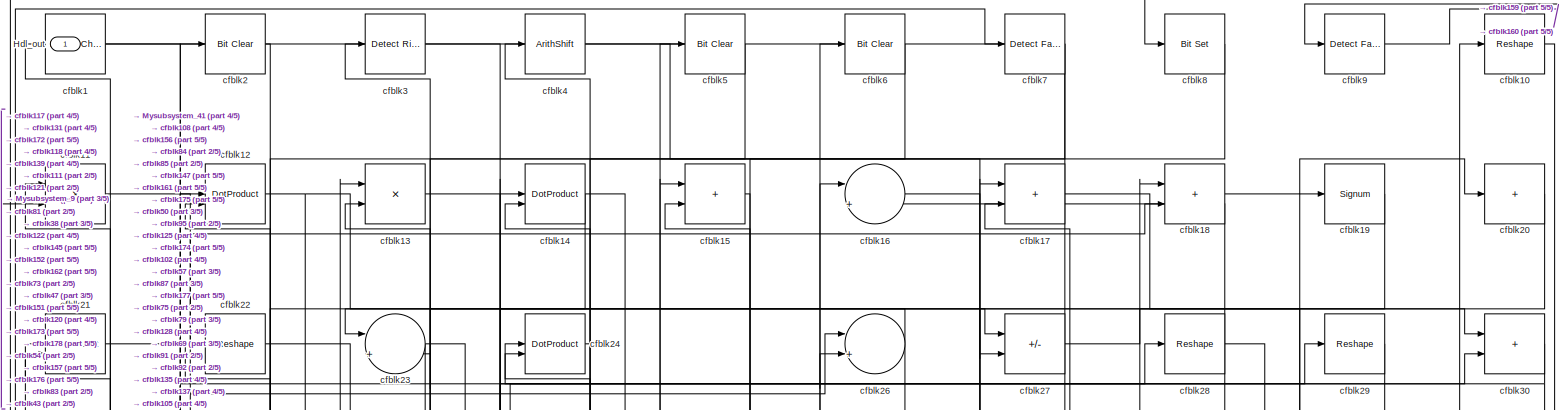
[diagram: root canvas - part 1/5, full width, top band]
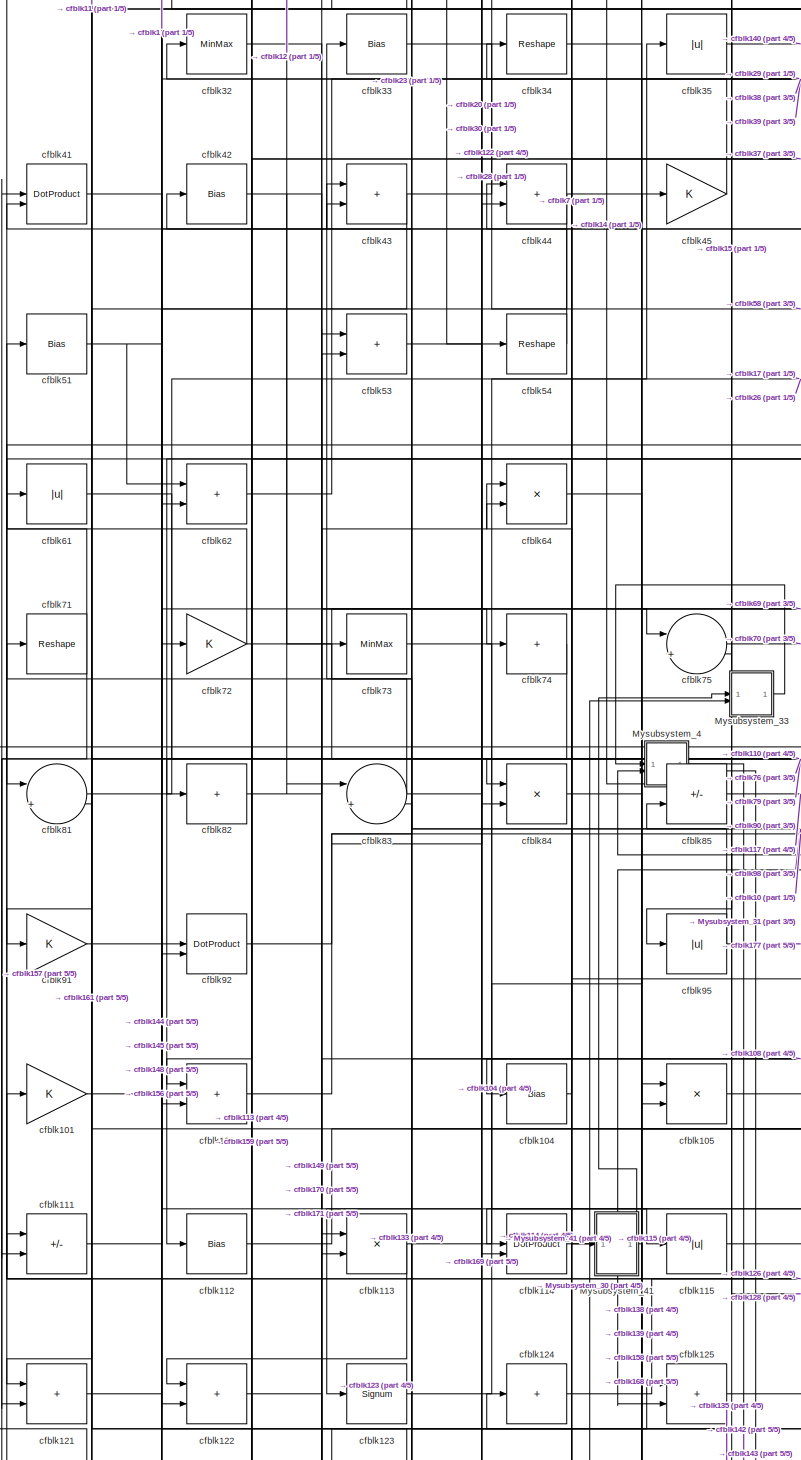
[diagram: root canvas - part 2/5, middle left region]
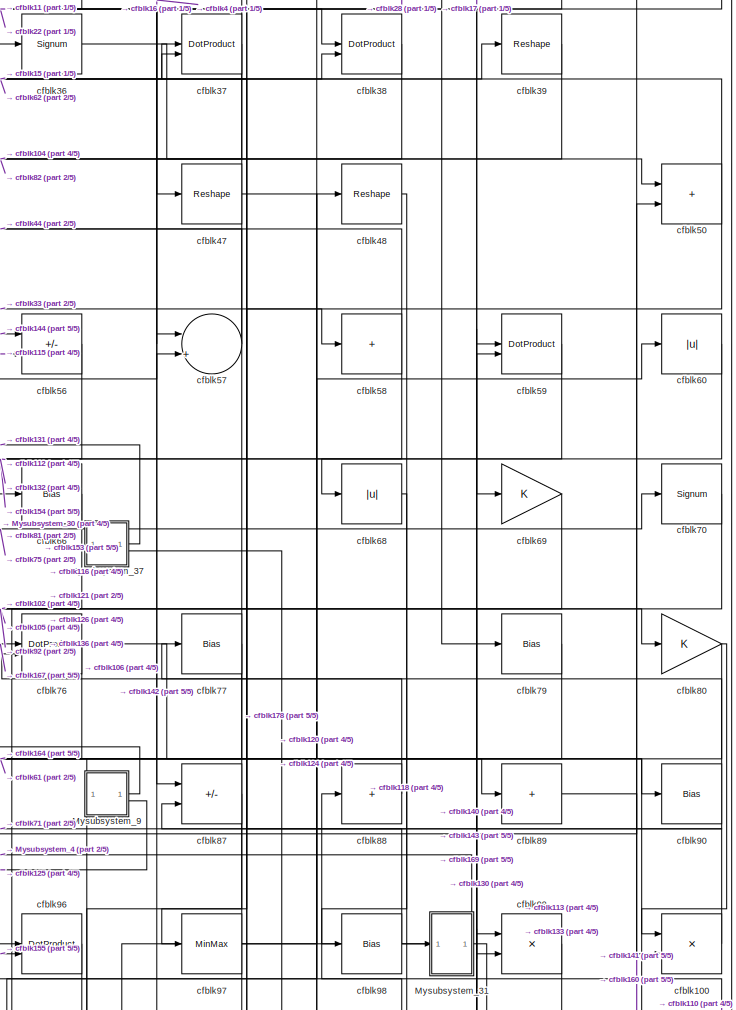
[diagram: root canvas - part 3/5, middle right region]
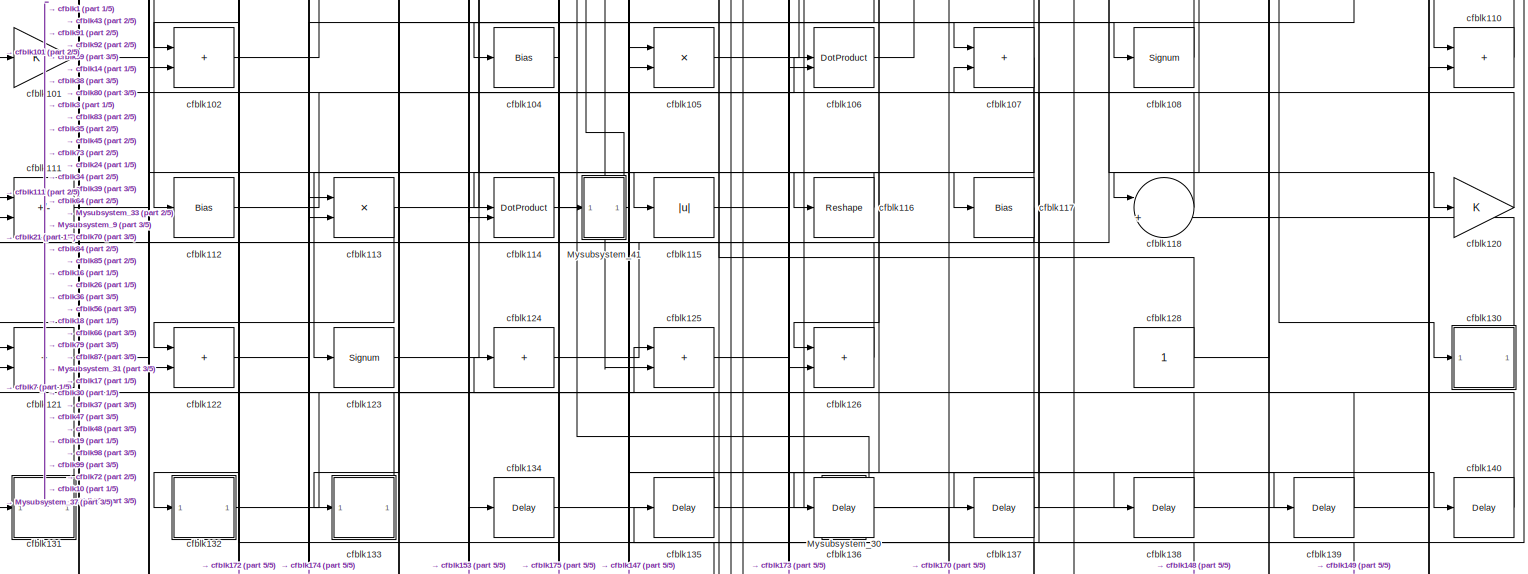
[diagram: root canvas - part 4/5, full width, bottom band]
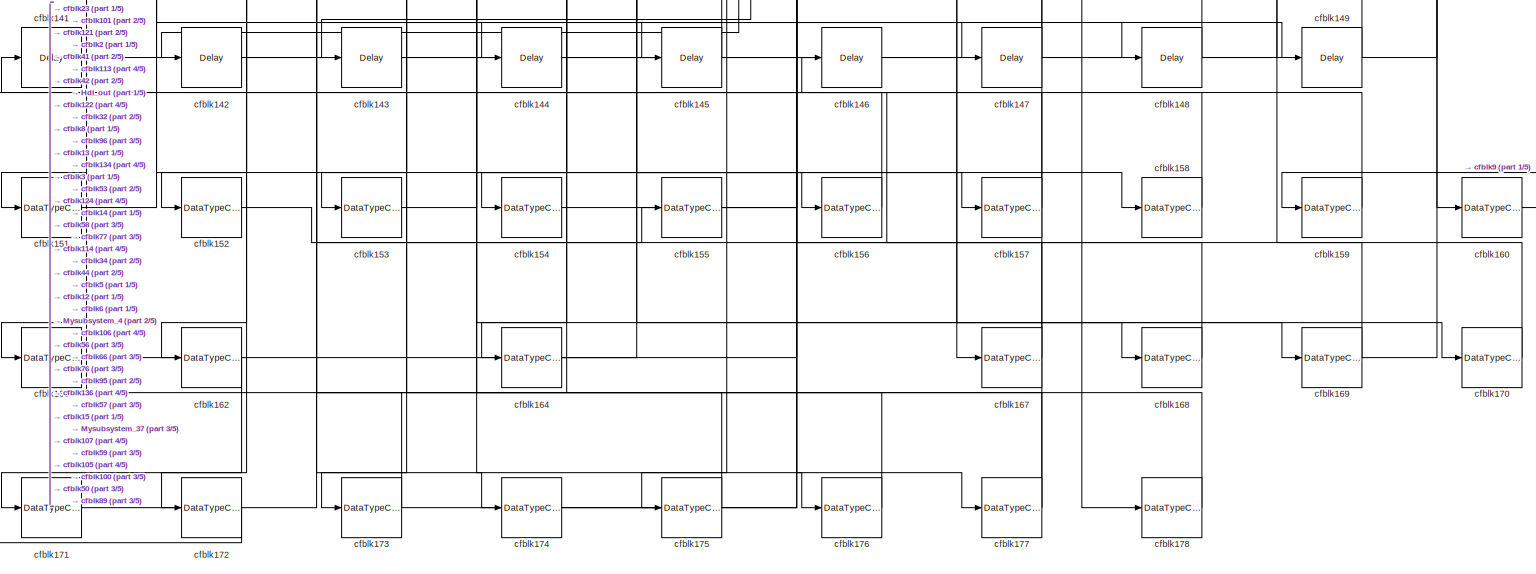
[diagram: root canvas - part 5/5, full width, bottom band]
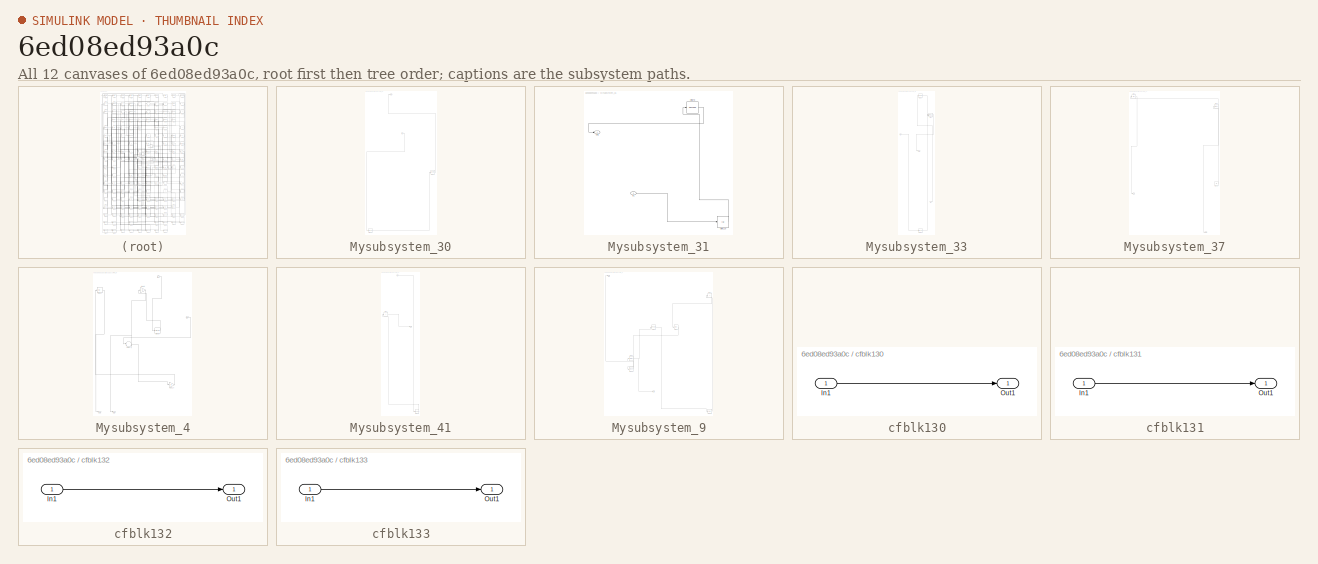
[diagram: thumbnail index - all 12 canvases of the model, root first then tree order]
MODEL slx_6ed08ed93a0c
KIND model
CONFIG AbsTol = auto
CONFIG EnableMultiTasking = off
CONFIG FixedStep = auto
CONFIG MaxStep = auto
CONFIG MinStep = auto
CONFIG RelTol = 1e-3
CONFIG SampleTimeConstraint = Unconstrained
CONFIG SolverName = VariableStepAuto
CONFIG StartTime = 0.0
CONFIG StopTime = 10.0
BLOCK [Outport] Hdl_out
  OutDataTypeStr = uint8
BLOCK [SubSystem] Mysubsystem_30
  RTWFcnName = Mysubsystem_30
  RTWFcnNameOpts = User specified
  RTWFileNameOpts = Use function name
  RTWSystemCode = Reusable function
  TreatAsAtomicUnit = on
BLOCK [Inport] Mysubsystem_30/In1
BLOCK [Outport] Mysubsystem_30/Out1
BLOCK [Signum] Mysubsystem_30/cfblk109
BLOCK [DataTypeConversion] Mysubsystem_30/cfblk163
  OutDataTypeStr = uint8
  RndMeth = Floor
  SaturateOnIntegerOverflow = off
BLOCK [SubSystem] Mysubsystem_31
  RTWFcnName = Mysubsystem_31
  RTWFcnNameOpts = User specified
  RTWFileNameOpts = Use function name
  RTWSystemCode = Reusable function
  TreatAsAtomicUnit = on
BLOCK [Inport] Mysubsystem_31/In1
BLOCK [Outport] Mysubsystem_31/Out1
BLOCK [Abs] Mysubsystem_31/cfblk119
  SaturateOnIntegerOverflow = off
BLOCK [Reshape] Mysubsystem_31/cfblk78
BLOCK [SubSystem] Mysubsystem_33
  RTWFcnName = Mysubsystem_33
  RTWFcnNameOpts = User specified
  RTWFileNameOpts = Use function name
  RTWSystemCode = Reusable function
  TreatAsAtomicUnit = on
BLOCK [Inport] Mysubsystem_33/In1
BLOCK [Inport] Mysubsystem_33/In2
  Port = 2
BLOCK [Outport] Mysubsystem_33/Out1
BLOCK [DataTypeConversion] Mysubsystem_33/cfblk165
  OutDataTypeStr = uint8
  RndMeth = Floor
  SaturateOnIntegerOverflow = off
BLOCK [Reshape] Mysubsystem_33/cfblk25
BLOCK [DotProduct] Mysubsystem_33/cfblk46
  OutDataTypeStr = Inherit: Inherit via internal rule
BLOCK [SubSystem] Mysubsystem_37
  RTWFcnName = Mysubsystem_37
  RTWFcnNameOpts = User specified
  RTWFileNameOpts = Use function name
  RTWSystemCode = Reusable function
  TreatAsAtomicUnit = on
BLOCK [Outport] Mysubsystem_37/Out1
BLOCK [Outport] Mysubsystem_37/Out2
  Port = 2
BLOCK [Ground] Mysubsystem_37/cfblk129
BLOCK [Bias] Mysubsystem_37/cfblk31
  Bias = 0.0
  SaturateOnIntegerOverflow = off
BLOCK [MinMax] Mysubsystem_37/cfblk49
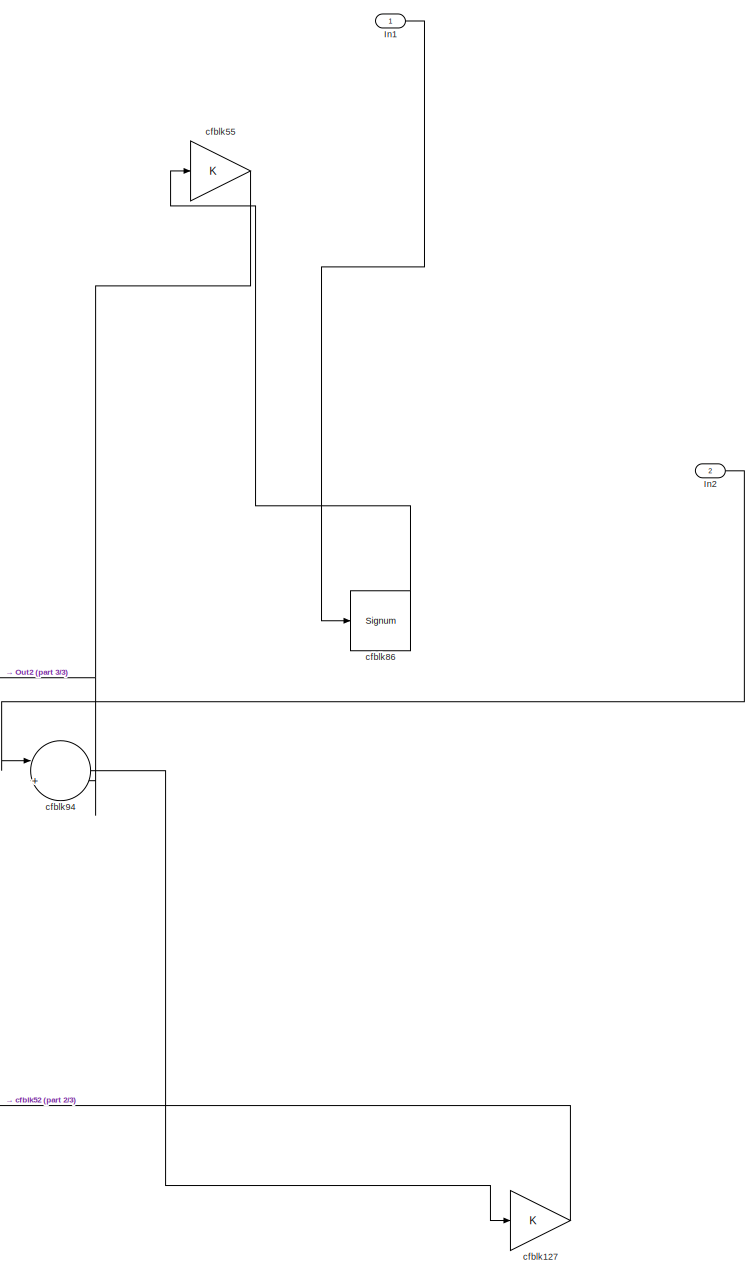
[diagram: Mysubsystem_4 - part 1/3, center side, full height]
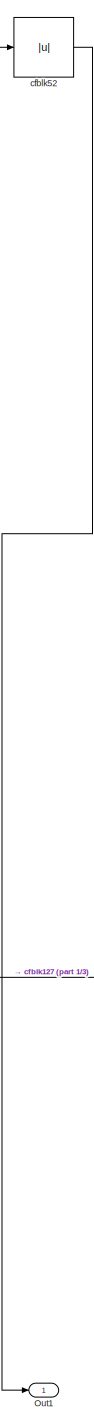
[diagram: Mysubsystem_4 - part 2/3, left side, full height]
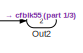
[diagram: Mysubsystem_4 - part 3/3, bottom left region]
BLOCK [SubSystem] Mysubsystem_4
  RTWFcnName = Mysubsystem_4
  RTWFcnNameOpts = User specified
  RTWFileNameOpts = Use function name
  RTWSystemCode = Reusable function
  TreatAsAtomicUnit = on
BLOCK [Inport] Mysubsystem_4/In1
BLOCK [Inport] Mysubsystem_4/In2
  Port = 2
BLOCK [Outport] Mysubsystem_4/Out1
BLOCK [Outport] Mysubsystem_4/Out2
  Port = 2
BLOCK [Gain] Mysubsystem_4/cfblk127
BLOCK [Abs] Mysubsystem_4/cfblk52
  SaturateOnIntegerOverflow = off
BLOCK [Gain] Mysubsystem_4/cfblk55
BLOCK [Signum] Mysubsystem_4/cfblk86
BLOCK [Sum] Mysubsystem_4/cfblk94
  Inputs = |++
BLOCK [SubSystem] Mysubsystem_41
  RTWFcnName = Mysubsystem_41
  RTWFcnNameOpts = User specified
  RTWFileNameOpts = Use function name
  RTWSystemCode = Reusable function
  TreatAsAtomicUnit = on
BLOCK [Inport] Mysubsystem_41/In1
BLOCK [Outport] Mysubsystem_41/Out1
BLOCK [DataTypeConversion] Mysubsystem_41/cfblk166
  OutDataTypeStr = uint8
  RndMeth = Floor
  SaturateOnIntegerOverflow = off
BLOCK [Sum] Mysubsystem_41/cfblk63
  IconShape = rectangular
  Inputs = +
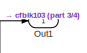
[diagram: Mysubsystem_9 - part 1/4, top left region]
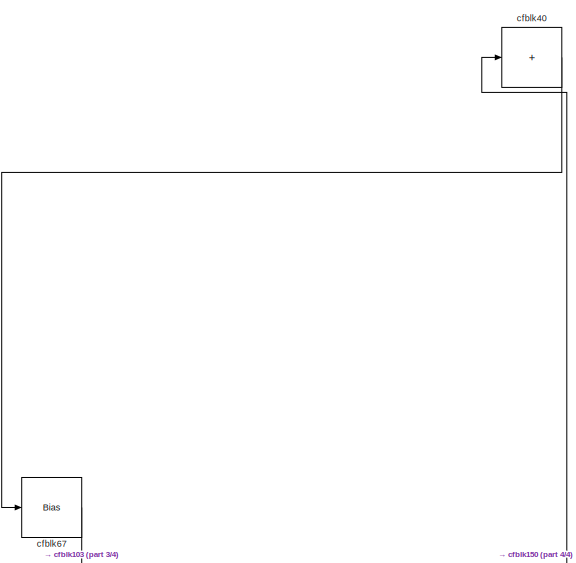
[diagram: Mysubsystem_9 - part 2/4, top right region]
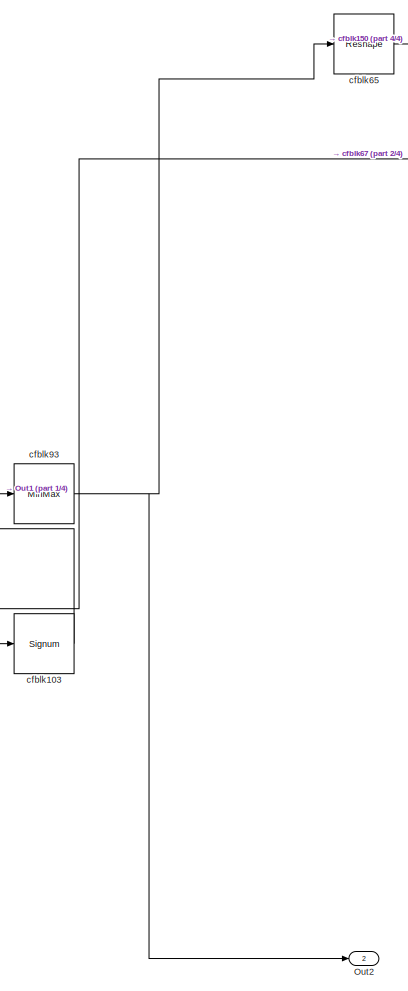
[diagram: Mysubsystem_9 - part 3/4, central region]
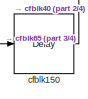
[diagram: Mysubsystem_9 - part 4/4, bottom right region]
BLOCK [SubSystem] Mysubsystem_9
  RTWFcnName = Mysubsystem_9
  RTWFcnNameOpts = User specified
  RTWFileNameOpts = Use function name
  RTWSystemCode = Reusable function
  TreatAsAtomicUnit = on
BLOCK [Outport] Mysubsystem_9/Out1
BLOCK [Outport] Mysubsystem_9/Out2
  Port = 2
BLOCK [Signum] Mysubsystem_9/cfblk103
BLOCK [Delay] Mysubsystem_9/cfblk150
  InputPortMap = u0
  SampleTime = 1
BLOCK [Sum] Mysubsystem_9/cfblk40
  IconShape = rectangular
  Inputs = +
BLOCK [Reshape] Mysubsystem_9/cfblk65
BLOCK [Bias] Mysubsystem_9/cfblk67
  Bias = 0.0
  SaturateOnIntegerOverflow = off
BLOCK [MinMax] Mysubsystem_9/cfblk93
BLOCK [Reference] cfblk1  REF=simulink/Logic and Bit
Operations/Detect
Change
  LibrarySourceBlock = hdlsllib/Logic and Bit\nOperations/Detect\nChange
  SourceBlock = simulink/Logic and Bit\nOperations/Detect\nChange
  SourceType = Detect Change
BLOCK [Reshape] cfblk10
BLOCK [Product] cfblk100
  Inputs = */
  OutDataTypeStr = uint8
  RndMeth = Zero
  SaturateOnIntegerOverflow = on
BLOCK [Gain] cfblk101
  OutDataTypeStr = uint8
BLOCK [Sum] cfblk102
  IconShape = rectangular
  OutDataTypeStr = uint8
BLOCK [Bias] cfblk104
  Bias = 0.0
  SaturateOnIntegerOverflow = off
BLOCK [Product] cfblk105
  Inputs = */
  OutDataTypeStr = uint8
  RndMeth = Zero
  SaturateOnIntegerOverflow = on
BLOCK [DotProduct] cfblk106
  OutDataTypeStr = uint8
BLOCK [Sum] cfblk107
  IconShape = rectangular
  OutDataTypeStr = uint8
BLOCK [Signum] cfblk108
BLOCK [Product] cfblk11
  Inputs = */
  OutDataTypeStr = uint8
  RndMeth = Zero
  SaturateOnIntegerOverflow = on
BLOCK [Sum] cfblk110
  IconShape = rectangular
  OutDataTypeStr = uint8
BLOCK [Sum] cfblk111
  IconShape = rectangular
  Inputs = +-
  OutDataTypeStr = uint8
BLOCK [Bias] cfblk112
  Bias = 0.0
  SaturateOnIntegerOverflow = off
BLOCK [Product] cfblk113
  Inputs = */
  OutDataTypeStr = uint8
  RndMeth = Zero
  SaturateOnIntegerOverflow = on
BLOCK [DotProduct] cfblk114
  OutDataTypeStr = uint8
BLOCK [Abs] cfblk115
  OutDataTypeStr = uint8
  SaturateOnIntegerOverflow = off
BLOCK [Reshape] cfblk116
BLOCK [Bias] cfblk117
  Bias = 0.0
  SaturateOnIntegerOverflow = off
BLOCK [Sum] cfblk118
  Inputs = |++
  OutDataTypeStr = uint8
BLOCK [DotProduct] cfblk12
  OutDataTypeStr = uint8
BLOCK [Gain] cfblk120
  OutDataTypeStr = uint8
BLOCK [Sum] cfblk121
  IconShape = rectangular
  OutDataTypeStr = uint8
BLOCK [Sum] cfblk122
  IconShape = rectangular
  OutDataTypeStr = uint8
BLOCK [Signum] cfblk123
BLOCK [Sum] cfblk124
  IconShape = rectangular
  Inputs = +
  OutDataTypeStr = uint8
BLOCK [Sum] cfblk125
  IconShape = rectangular
  OutDataTypeStr = uint8
BLOCK [Sum] cfblk126
  IconShape = rectangular
  OutDataTypeStr = uint8
BLOCK [Constant] cfblk128
  OutDataTypeStr = uint8
  SampleTime = -1
BLOCK [Product] cfblk13
  Inputs = */
  OutDataTypeStr = uint8
  RndMeth = Zero
  SaturateOnIntegerOverflow = on
BLOCK [SubSystem] cfblk130
  LibrarySourceBlock = hdlsllib/Ports &\nSubsystems/Subsystem
BLOCK [Inport] cfblk130/In1
BLOCK [Outport] cfblk130/Out1
BLOCK [SubSystem] cfblk131
  LibrarySourceBlock = hdlsllib/Ports &\nSubsystems/Subsystem
BLOCK [Inport] cfblk131/In1
BLOCK [Outport] cfblk131/Out1
BLOCK [SubSystem] cfblk132
  LibrarySourceBlock = hdlsllib/Ports &\nSubsystems/Subsystem
BLOCK [Inport] cfblk132/In1
BLOCK [Outport] cfblk132/Out1
BLOCK [SubSystem] cfblk133
  LibrarySourceBlock = hdlsllib/Ports &\nSubsystems/Subsystem
BLOCK [Inport] cfblk133/In1
BLOCK [Outport] cfblk133/Out1
BLOCK [Delay] cfblk134
  InputPortMap = u0
  SampleTime = 1
BLOCK [Delay] cfblk135
  InputPortMap = u0
  SampleTime = 1
BLOCK [Delay] cfblk136
  InputPortMap = u0
  SampleTime = 1
BLOCK [Delay] cfblk137
  InputPortMap = u0
  SampleTime = 1
BLOCK [Delay] cfblk138
  InputPortMap = u0
  SampleTime = 1
BLOCK [Delay] cfblk139
  InputPortMap = u0
  SampleTime = 1
BLOCK [DotProduct] cfblk14
  OutDataTypeStr = uint8
BLOCK [Delay] cfblk140
  InputPortMap = u0
  SampleTime = 1
BLOCK [Delay] cfblk141
  InputPortMap = u0
  SampleTime = 1
BLOCK [Delay] cfblk142
  InputPortMap = u0
  SampleTime = 1
BLOCK [Delay] cfblk143
  InputPortMap = u0
  SampleTime = 1
BLOCK [Delay] cfblk144
  InputPortMap = u0
  SampleTime = 1
BLOCK [Delay] cfblk145
  InputPortMap = u0
  SampleTime = 1
BLOCK [Delay] cfblk146
  InputPortMap = u0
  SampleTime = 1
BLOCK [Delay] cfblk147
  InputPortMap = u0
  SampleTime = 1
BLOCK [Delay] cfblk148
  InputPortMap = u0
  SampleTime = 1
BLOCK [Delay] cfblk149
  InputPortMap = u0
  SampleTime = 1
BLOCK [Sum] cfblk15
  IconShape = rectangular
  OutDataTypeStr = uint8
BLOCK [DataTypeConversion] cfblk151
  OutDataTypeStr = uint8
  RndMeth = Floor
  SaturateOnIntegerOverflow = off
BLOCK [DataTypeConversion] cfblk152
  OutDataTypeStr = uint8
  RndMeth = Floor
  SaturateOnIntegerOverflow = off
BLOCK [DataTypeConversion] cfblk153
  OutDataTypeStr = uint8
  RndMeth = Floor
  SaturateOnIntegerOverflow = off
BLOCK [DataTypeConversion] cfblk154
  OutDataTypeStr = uint8
  RndMeth = Floor
  SaturateOnIntegerOverflow = off
BLOCK [DataTypeConversion] cfblk155
  OutDataTypeStr = uint8
  RndMeth = Floor
  SaturateOnIntegerOverflow = off
BLOCK [DataTypeConversion] cfblk156
  OutDataTypeStr = uint8
  RndMeth = Floor
  SaturateOnIntegerOverflow = off
BLOCK [DataTypeConversion] cfblk157
  OutDataTypeStr = uint8
  RndMeth = Floor
  SaturateOnIntegerOverflow = off
BLOCK [DataTypeConversion] cfblk158
  OutDataTypeStr = uint8
  RndMeth = Floor
  SaturateOnIntegerOverflow = off
BLOCK [DataTypeConversion] cfblk159
  OutDataTypeStr = uint8
  RndMeth = Floor
  SaturateOnIntegerOverflow = off
BLOCK [Sum] cfblk16
  Inputs = |++
  OutDataTypeStr = uint8
BLOCK [DataTypeConversion] cfblk160
  OutDataTypeStr = uint8
  RndMeth = Floor
  SaturateOnIntegerOverflow = off
BLOCK [DataTypeConversion] cfblk161
  OutDataTypeStr = uint8
  RndMeth = Floor
  SaturateOnIntegerOverflow = off
BLOCK [DataTypeConversion] cfblk162
  OutDataTypeStr = uint8
  RndMeth = Floor
  SaturateOnIntegerOverflow = off
BLOCK [DataTypeConversion] cfblk164
  OutDataTypeStr = uint8
  RndMeth = Floor
  SaturateOnIntegerOverflow = off
BLOCK [DataTypeConversion] cfblk167
  OutDataTypeStr = uint8
  RndMeth = Floor
  SaturateOnIntegerOverflow = off
BLOCK [DataTypeConversion] cfblk168
  OutDataTypeStr = uint8
  RndMeth = Floor
  SaturateOnIntegerOverflow = off
BLOCK [DataTypeConversion] cfblk169
  OutDataTypeStr = uint8
  RndMeth = Floor
  SaturateOnIntegerOverflow = off
BLOCK [Sum] cfblk17
  IconShape = rectangular
  OutDataTypeStr = uint8
BLOCK [DataTypeConversion] cfblk170
  OutDataTypeStr = uint8
  RndMeth = Floor
  SaturateOnIntegerOverflow = off
BLOCK [DataTypeConversion] cfblk171
  OutDataTypeStr = uint8
  RndMeth = Floor
  SaturateOnIntegerOverflow = off
BLOCK [DataTypeConversion] cfblk172
  OutDataTypeStr = uint8
  RndMeth = Floor
  SaturateOnIntegerOverflow = off
BLOCK [DataTypeConversion] cfblk173
  OutDataTypeStr = uint8
  RndMeth = Floor
  SaturateOnIntegerOverflow = off
BLOCK [DataTypeConversion] cfblk174
  OutDataTypeStr = uint8
  RndMeth = Floor
  SaturateOnIntegerOverflow = off
BLOCK [DataTypeConversion] cfblk175
  OutDataTypeStr = uint8
  RndMeth = Floor
  SaturateOnIntegerOverflow = off
BLOCK [DataTypeConversion] cfblk176
  OutDataTypeStr = uint8
  RndMeth = Floor
  SaturateOnIntegerOverflow = off
BLOCK [DataTypeConversion] cfblk177
  OutDataTypeStr = uint8
  RndMeth = Floor
  SaturateOnIntegerOverflow = off
BLOCK [DataTypeConversion] cfblk178
  OutDataTypeStr = uint8
  RndMeth = Floor
  SaturateOnIntegerOverflow = off
BLOCK [Sum] cfblk18
  IconShape = rectangular
  OutDataTypeStr = uint8
BLOCK [Signum] cfblk19
BLOCK [Reference] cfblk2  REF=simulink/Logic and Bit
Operations/Bit Clear
  LibrarySourceBlock = hdlsllib/Logic and Bit\nOperations/Bit Clear
  SourceBlock = simulink/Logic and Bit\nOperations/Bit Clear
  SourceType = Bit Clear
BLOCK [Sum] cfblk20
  IconShape = rectangular
  Inputs = +
  OutDataTypeStr = uint8
BLOCK [DotProduct] cfblk21
  OutDataTypeStr = uint8
BLOCK [Reshape] cfblk22
BLOCK [Sum] cfblk23
  Inputs = |++
  OutDataTypeStr = uint8
BLOCK [DotProduct] cfblk24
  OutDataTypeStr = uint8
BLOCK [Sum] cfblk26
  Inputs = |++
  OutDataTypeStr = uint8
BLOCK [Sum] cfblk27
  IconShape = rectangular
  Inputs = +-
  OutDataTypeStr = uint8
BLOCK [Reshape] cfblk28
BLOCK [Reshape] cfblk29
BLOCK [Reference] cfblk3  REF=hdlsllib/Logic and Bit
Operations/Detect Rise
Positive
  SourceBlock = hdlsllib/Logic and Bit\nOperations/Detect Rise\nPositive
  SourceType = Detect Rise Positive
BLOCK [Sum] cfblk30
  IconShape = rectangular
  OutDataTypeStr = uint8
BLOCK [MinMax] cfblk32
  OutDataTypeStr = uint8
BLOCK [Bias] cfblk33
  Bias = 0.0
  SaturateOnIntegerOverflow = off
BLOCK [Reshape] cfblk34
BLOCK [Abs] cfblk35
  OutDataTypeStr = uint8
  SaturateOnIntegerOverflow = off
BLOCK [Signum] cfblk36
BLOCK [DotProduct] cfblk37
  OutDataTypeStr = uint8
BLOCK [DotProduct] cfblk38
  OutDataTypeStr = uint8
BLOCK [Reshape] cfblk39
BLOCK [ArithShift] cfblk4
  BitShiftNumber = 8
  InputPortMap = u0
BLOCK [DotProduct] cfblk41
  OutDataTypeStr = uint8
BLOCK [Bias] cfblk42
  Bias = 0.0
  SaturateOnIntegerOverflow = off
BLOCK [Sum] cfblk43
  IconShape = rectangular
  OutDataTypeStr = uint8
BLOCK [Sum] cfblk44
  IconShape = rectangular
  OutDataTypeStr = uint8
BLOCK [Gain] cfblk45
  OutDataTypeStr = uint8
BLOCK [Reshape] cfblk47
BLOCK [Reshape] cfblk48
BLOCK [Reference] cfblk5  REF=simulink/Logic and Bit
Operations/Bit Clear
  LibrarySourceBlock = hdlsllib/Logic and Bit\nOperations/Bit Clear
  SourceBlock = simulink/Logic and Bit\nOperations/Bit Clear
  SourceType = Bit Clear
BLOCK [Sum] cfblk50
  IconShape = rectangular
  OutDataTypeStr = uint8
BLOCK [Bias] cfblk51
  Bias = 0.0
  SaturateOnIntegerOverflow = off
BLOCK [Sum] cfblk53
  IconShape = rectangular
  OutDataTypeStr = uint8
BLOCK [Reshape] cfblk54
BLOCK [Sum] cfblk56
  IconShape = rectangular
  Inputs = +-
  OutDataTypeStr = uint8
BLOCK [Sum] cfblk57
  Inputs = |++
  OutDataTypeStr = uint8
BLOCK [Sum] cfblk58
  IconShape = rectangular
  Inputs = +
  OutDataTypeStr = uint8
BLOCK [DotProduct] cfblk59
  OutDataTypeStr = uint8
BLOCK [Reference] cfblk6  REF=simulink/Logic and Bit
Operations/Bit Clear
  LibrarySourceBlock = hdlsllib/Logic and Bit\nOperations/Bit Clear
  SourceBlock = simulink/Logic and Bit\nOperations/Bit Clear
  SourceType = Bit Clear
BLOCK [Abs] cfblk60
  OutDataTypeStr = uint8
  SaturateOnIntegerOverflow = off
BLOCK [Abs] cfblk61
  OutDataTypeStr = uint8
  SaturateOnIntegerOverflow = off
BLOCK [Sum] cfblk62
  IconShape = rectangular
  OutDataTypeStr = uint8
BLOCK [Product] cfblk64
  Inputs = */
  OutDataTypeStr = uint8
  RndMeth = Zero
  SaturateOnIntegerOverflow = on
BLOCK [Bias] cfblk66
  Bias = 0.0
  SaturateOnIntegerOverflow = off
BLOCK [Abs] cfblk68
  OutDataTypeStr = uint8
  SaturateOnIntegerOverflow = off
BLOCK [Gain] cfblk69
  OutDataTypeStr = uint8
BLOCK [Reference] cfblk7  REF=hdlsllib/Logic and Bit
Operations/Detect Fall
Nonpositive
  SourceBlock = hdlsllib/Logic and Bit\nOperations/Detect Fall\nNonpositive
  SourceType = Detect Fall Nonpositive
BLOCK [Signum] cfblk70
BLOCK [Reshape] cfblk71
BLOCK [Gain] cfblk72
  OutDataTypeStr = uint8
BLOCK [MinMax] cfblk73
  OutDataTypeStr = uint8
BLOCK [Sum] cfblk74
  IconShape = rectangular
  Inputs = +
  OutDataTypeStr = uint8
BLOCK [Sum] cfblk75
  Inputs = |++
  OutDataTypeStr = uint8
BLOCK [DotProduct] cfblk76
  OutDataTypeStr = uint8
BLOCK [Bias] cfblk77
  Bias = 0.0
  SaturateOnIntegerOverflow = off
BLOCK [Bias] cfblk79
  Bias = 0.0
  SaturateOnIntegerOverflow = off
BLOCK [Reference] cfblk8  REF=simulink/Logic and Bit
Operations/Bit Set
  LibrarySourceBlock = hdlsllib/Logic and Bit\nOperations/Bit Set
  SourceBlock = simulink/Logic and Bit\nOperations/Bit Set
  SourceType = Bit Set
BLOCK [Gain] cfblk80
  OutDataTypeStr = uint8
BLOCK [Sum] cfblk81
  Inputs = |++
  OutDataTypeStr = uint8
BLOCK [Sum] cfblk82
  IconShape = rectangular
  Inputs = +
  OutDataTypeStr = uint8
BLOCK [Sum] cfblk83
  Inputs = |++
  OutDataTypeStr = uint8
BLOCK [Product] cfblk84
  Inputs = */
  OutDataTypeStr = uint8
  RndMeth = Zero
  SaturateOnIntegerOverflow = on
BLOCK [Sum] cfblk85
  IconShape = rectangular
  Inputs = +-
  OutDataTypeStr = uint8
BLOCK [Sum] cfblk87
  IconShape = rectangular
  Inputs = +-
  OutDataTypeStr = uint8
BLOCK [Sum] cfblk88
  IconShape = rectangular
  Inputs = +
  OutDataTypeStr = uint8
BLOCK [Sum] cfblk89
  IconShape = rectangular
  Inputs = +
  OutDataTypeStr = uint8
BLOCK [Reference] cfblk9  REF=hdlsllib/Logic and Bit
Operations/Detect Fall
Nonpositive
  SourceBlock = hdlsllib/Logic and Bit\nOperations/Detect Fall\nNonpositive
  SourceType = Detect Fall Nonpositive
BLOCK [Bias] cfblk90
  Bias = 0.0
  SaturateOnIntegerOverflow = off
BLOCK [Gain] cfblk91
  OutDataTypeStr = uint8
BLOCK [DotProduct] cfblk92
  OutDataTypeStr = uint8
BLOCK [Abs] cfblk95
  OutDataTypeStr = uint8
  SaturateOnIntegerOverflow = off
BLOCK [DotProduct] cfblk96
  OutDataTypeStr = uint8
BLOCK [MinMax] cfblk97
  OutDataTypeStr = uint8
BLOCK [Bias] cfblk98
  Bias = 0.0
  SaturateOnIntegerOverflow = off
BLOCK [Product] cfblk99
  Inputs = */
  OutDataTypeStr = uint8
  RndMeth = Zero
  SaturateOnIntegerOverflow = on
LINE Mysubsystem_30/In1:1 -> Mysubsystem_30/cfblk163:1
LINE Mysubsystem_30/cfblk109:1 -> Mysubsystem_30/Out1:1
LINE Mysubsystem_30/cfblk163:1 -> Mysubsystem_30/cfblk109:1
LINE Mysubsystem_30:1 -> Mysubsystem_33:2
LINE Mysubsystem_31/In1:1 -> Mysubsystem_31/cfblk119:1
LINE Mysubsystem_31/cfblk119:1 -> Mysubsystem_31/cfblk78:1
LINE Mysubsystem_31/cfblk78:1 -> Mysubsystem_31/Out1:1
LINE Mysubsystem_31:1 -> Mysubsystem_4:2
LINE Mysubsystem_33/In1:1 -> Mysubsystem_33/cfblk165:1
LINE Mysubsystem_33/In2:1 -> Mysubsystem_33/cfblk25:1
LINE Mysubsystem_33/cfblk165:1 -> Mysubsystem_33/cfblk46:1
LINE Mysubsystem_33/cfblk25:1 -> Mysubsystem_33/cfblk46:2
LINE Mysubsystem_33/cfblk46:1 -> Mysubsystem_33/Out1:1
LINE Mysubsystem_33:1 -> Mysubsystem_4:1
LINE Mysubsystem_37/cfblk129:1 -> Mysubsystem_37/cfblk49:1
LINE Mysubsystem_37/cfblk31:1 -> Mysubsystem_37/Out1:1
NET Mysubsystem_37/cfblk49:1 -> Mysubsystem_37/Out2:1, Mysubsystem_37/cfblk31:1
LINE Mysubsystem_37:1 -> cfblk131:1
LINE Mysubsystem_37:2 -> cfblk178:1
LINE Mysubsystem_4/In1:1 -> Mysubsystem_4/cfblk86:1
LINE Mysubsystem_4/In2:1 -> Mysubsystem_4/cfblk94:1
LINE Mysubsystem_4/cfblk127:1 -> Mysubsystem_4/cfblk52:1
LINE Mysubsystem_4/cfblk52:1 -> Mysubsystem_4/Out1:1
NET Mysubsystem_4/cfblk55:1 -> Mysubsystem_4/Out2:1, Mysubsystem_4/cfblk94:2
LINE Mysubsystem_4/cfblk86:1 -> Mysubsystem_4/cfblk55:1
LINE Mysubsystem_4/cfblk94:1 -> Mysubsystem_4/cfblk127:1
LINE Mysubsystem_41/In1:1 -> Mysubsystem_41/cfblk166:1
LINE Mysubsystem_41/cfblk166:1 -> Mysubsystem_41/cfblk63:1
LINE Mysubsystem_41/cfblk63:1 -> Mysubsystem_41/Out1:1
LINE Mysubsystem_41:1 -> Mysubsystem_33:1
LINE Mysubsystem_4:1 -> cfblk142:1
LINE Mysubsystem_4:2 -> cfblk143:1
NET Mysubsystem_9/cfblk103:1 -> Mysubsystem_9/Out1:1, Mysubsystem_9/cfblk93:1
LINE Mysubsystem_9/cfblk150:1 -> Mysubsystem_9/cfblk40:1
LINE Mysubsystem_9/cfblk40:1 -> Mysubsystem_9/cfblk67:1
LINE Mysubsystem_9/cfblk65:1 -> Mysubsystem_9/cfblk150:1
LINE Mysubsystem_9/cfblk67:1 -> Mysubsystem_9/cfblk103:1
NET Mysubsystem_9/cfblk93:1 -> Mysubsystem_9/Out2:1, Mysubsystem_9/cfblk65:1
LINE Mysubsystem_9:1 -> cfblk11:2
LINE Mysubsystem_9:2 -> cfblk125:2
LINE cfblk100:1 -> cfblk37:1
NET cfblk101:1 -> cfblk144:1, cfblk145:1
LINE cfblk102:1 -> cfblk80:1
LINE cfblk104:1 -> cfblk64:1
NET cfblk105:1 -> cfblk107:1, cfblk18:1
LINE cfblk106:1 -> Mysubsystem_31:1
LINE cfblk107:1 -> cfblk123:1
LINE cfblk108:1 -> cfblk24:1
LINE cfblk10:1 -> cfblk135:1
LINE cfblk110:1 -> cfblk88:1
LINE cfblk111:1 -> cfblk12:1
LINE cfblk112:1 -> cfblk36:1
NET cfblk113:1 -> cfblk172:1, cfblk35:1
NET cfblk114:1 -> cfblk106:1, cfblk147:1
LINE cfblk115:1 -> cfblk56:2
LINE cfblk116:1 -> cfblk114:1
LINE cfblk117:1 -> cfblk21:1
LINE cfblk118:1 -> cfblk21:2
LINE cfblk11:1 -> cfblk38:1
LINE cfblk120:1 -> cfblk3:1
NET cfblk121:1 -> cfblk148:1, cfblk29:1, cfblk38:2
LINE cfblk122:1 -> cfblk174:1
LINE cfblk123:1 -> cfblk45:1
NET cfblk124:1 -> cfblk37:2, cfblk48:1
NET cfblk125:1 -> cfblk16:1, cfblk26:2
NET cfblk126:1 -> cfblk101:1, cfblk34:1
NET cfblk128:1 -> cfblk19:1, cfblk85:2
NET cfblk12:1 -> cfblk27:1, cfblk73:1
LINE cfblk130/In1:1 -> cfblk130/Out1:1
LINE cfblk130:1 -> cfblk118:2
LINE cfblk131/In1:1 -> cfblk131/Out1:1
LINE cfblk131:1 -> cfblk7:1
LINE cfblk132/In1:1 -> cfblk132/Out1:1
LINE cfblk132:1 -> cfblk125:1
LINE cfblk133/In1:1 -> cfblk133/Out1:1
LINE cfblk133:1 -> cfblk111:1
LINE cfblk134:1 -> cfblk110:2
LINE cfblk135:1 -> cfblk92:1
LINE cfblk136:1 -> cfblk170:1
LINE cfblk137:1 -> cfblk17:2
LINE cfblk138:1 -> cfblk83:2
LINE cfblk139:1 -> cfblk1:1
LINE cfblk13:1 -> cfblk176:1
LINE cfblk140:1 -> cfblk99:1
LINE cfblk141:1 -> cfblk50:2
LINE cfblk142:1 -> cfblk57:2
LINE cfblk143:1 -> cfblk59:2
LINE cfblk144:1 -> cfblk56:1
LINE cfblk145:1 -> cfblk12:2
LINE cfblk146:1 -> cfblk167:1
LINE cfblk147:1 -> cfblk15:1
LINE cfblk148:1 -> cfblk107:2
LINE cfblk149:1 -> cfblk105:1
NET cfblk14:1 -> cfblk122:1, cfblk85:1
LINE cfblk151:1 -> cfblk2:1
LINE cfblk152:1 -> cfblk155:1
LINE cfblk153:1 -> cfblk134:1
LINE cfblk154:1 -> cfblk96:1
LINE cfblk155:1 -> cfblk96:2
LINE cfblk156:1 -> cfblk14:2
LINE cfblk157:1 -> cfblk41:1
LINE cfblk158:1 -> cfblk41:2
LINE cfblk159:1 -> cfblk42:1
LINE cfblk15:1 -> cfblk95:1
LINE cfblk160:1 -> cfblk9:1
LINE cfblk161:1 -> cfblk5:1
LINE cfblk162:1 -> cfblk171:1
LINE cfblk164:1 -> cfblk66:1
LINE cfblk167:1 -> cfblk76:1
LINE cfblk168:1 -> cfblk146:1
NET cfblk169:1 -> cfblk100:2, cfblk59:1
LINE cfblk16:1 -> cfblk87:1
LINE cfblk170:1 -> cfblk53:1
LINE cfblk171:1 -> cfblk53:2
LINE cfblk172:1 -> cfblk8:1
NET cfblk173:1 -> cfblk106:2, cfblk141:1
LINE cfblk174:1 -> cfblk6:1
NET cfblk175:1 -> cfblk113:1, cfblk124:1
LINE cfblk176:1 -> cfblk14:1
NET cfblk177:1 -> Hdl_out:1, cfblk13:1
LINE cfblk178:1 -> cfblk13:2
LINE cfblk17:1 -> cfblk69:1
LINE cfblk18:1 -> cfblk20:1
NET cfblk19:1 -> cfblk23:2, cfblk27:2
LINE cfblk1:1 -> cfblk72:1
LINE cfblk20:1 -> cfblk84:2
LINE cfblk21:1 -> cfblk18:2
LINE cfblk22:1 -> cfblk47:1
NET cfblk23:1 -> cfblk151:1, cfblk54:1
NET cfblk24:1 -> Mysubsystem_41:1, cfblk4:1
NET cfblk26:1 -> cfblk102:2, cfblk23:1
LINE cfblk27:1 -> cfblk30:1
NET cfblk28:1 -> cfblk16:2, cfblk75:2, cfblk79:1
LINE cfblk29:1 -> cfblk91:1
LINE cfblk2:1 -> cfblk152:1
NET cfblk30:1 -> cfblk137:1, cfblk24:2
NET cfblk32:1 -> cfblk149:1, cfblk74:1
LINE cfblk33:1 -> cfblk58:1
LINE cfblk34:1 -> cfblk168:1
LINE cfblk35:1 -> cfblk140:1
LINE cfblk36:1 -> cfblk50:1
LINE cfblk37:1 -> cfblk82:1
LINE cfblk38:1 -> cfblk102:1
LINE cfblk39:1 -> cfblk104:1
LINE cfblk3:1 -> cfblk157:1
LINE cfblk41:1 -> cfblk156:1
NET cfblk42:1 -> cfblk75:1, cfblk83:1
NET cfblk43:1 -> cfblk122:2, cfblk28:1
NET cfblk44:1 -> cfblk158:1, cfblk161:1, cfblk62:2
LINE cfblk45:1 -> cfblk32:1
LINE cfblk47:1 -> cfblk120:1
LINE cfblk48:1 -> cfblk118:1
LINE cfblk4:1 -> cfblk57:1
NET cfblk50:1 -> cfblk15:2, cfblk97:1
NET cfblk51:1 -> cfblk43:2, cfblk62:1
LINE cfblk53:1 -> cfblk169:1
LINE cfblk54:1 -> cfblk11:1
LINE cfblk56:1 -> cfblk132:1
LINE cfblk57:1 -> cfblk22:1
NET cfblk58:1 -> cfblk154:1, cfblk44:1, cfblk81:1
LINE cfblk59:1 -> cfblk112:1
LINE cfblk5:1 -> cfblk162:1
LINE cfblk60:1 -> cfblk68:1
LINE cfblk61:1 -> cfblk90:1
LINE cfblk62:1 -> cfblk39:1
LINE cfblk64:1 -> cfblk139:1
LINE cfblk66:1 -> Mysubsystem_30:1
LINE cfblk68:1 -> cfblk98:1
LINE cfblk69:1 -> cfblk92:2
LINE cfblk6:1 -> cfblk175:1
NET cfblk70:1 -> cfblk105:2, cfblk99:2
NET cfblk71:1 -> cfblk111:2, cfblk51:1
NET cfblk72:1 -> cfblk110:1, cfblk61:1
LINE cfblk73:1 -> cfblk115:1
LINE cfblk74:1 -> cfblk121:2
LINE cfblk75:1 -> cfblk70:1
NET cfblk76:1 -> cfblk81:2, cfblk89:1
LINE cfblk77:1 -> cfblk164:1
NET cfblk79:1 -> cfblk116:1, cfblk121:1, cfblk126:1
LINE cfblk7:1 -> cfblk84:1
NET cfblk80:1 -> cfblk100:1, cfblk126:2
NET cfblk81:1 -> cfblk17:1, cfblk26:1
LINE cfblk82:1 -> cfblk64:2
NET cfblk83:1 -> cfblk108:1, cfblk30:2, cfblk33:1
LINE cfblk84:1 -> cfblk138:1
LINE cfblk85:1 -> cfblk117:1
LINE cfblk87:1 -> cfblk136:1
LINE cfblk88:1 -> cfblk76:2
LINE cfblk89:1 -> cfblk160:1
LINE cfblk8:1 -> cfblk173:1
NET cfblk90:1 -> cfblk77:1, cfblk87:2
LINE cfblk91:1 -> cfblk114:2
NET cfblk92:1 -> cfblk10:1, cfblk44:2
NET cfblk95:1 -> cfblk177:1, cfblk43:1
LINE cfblk96:1 -> cfblk153:1
LINE cfblk97:1 -> cfblk60:1
NET cfblk98:1 -> cfblk130:1, cfblk71:1
NET cfblk99:1 -> cfblk113:2, cfblk133:1
LINE cfblk9:1 -> cfblk159:1
note: NET lines group one-source signal fan-out (src -> all destinations, sorted); 1:1 wires keep LINE
